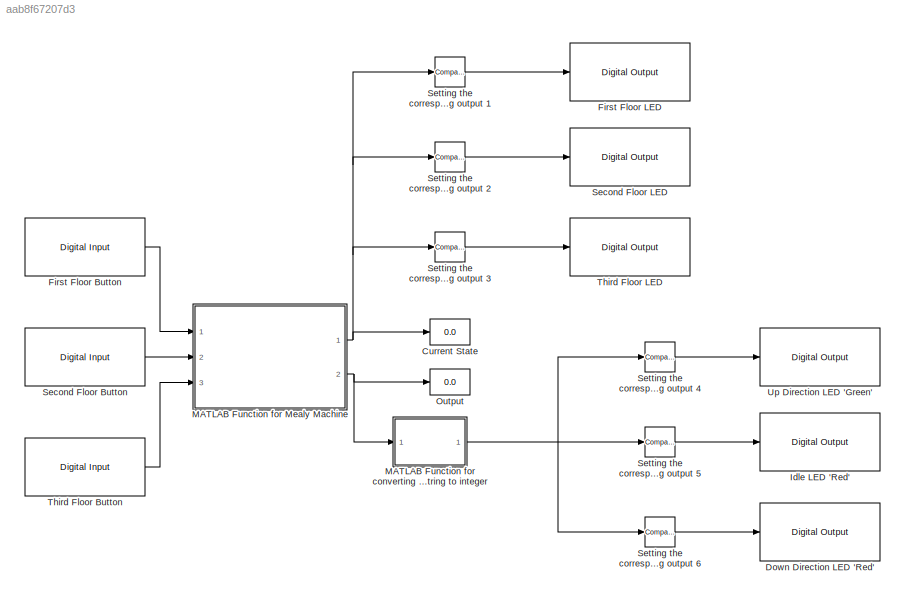
MODEL slx_aab8f67207d3
KIND model
CONFIG AbsTol = auto
CONFIG EnableMultiTasking = on
CONFIG FixedStep = 5000
CONFIG MaxStep = auto
CONFIG MinStep = auto
CONFIG RelTol = 1e-3
CONFIG SampleTimeConstraint = Unconstrained
CONFIG Solver = VariableStepAuto
CONFIG SolverName = VariableStepAuto
CONFIG StartTime = 0.0
CONFIG StopTime = inf
BLOCK [Display] Current State
  Decimation = 1
  Ports = [1]
BLOCK [Reference] Down Direction LED 'Red'  REF=arduinolib/Digital Output
  Ports = [1]
  SourceBlock = arduinolib/Digital Output
  SourceProductBaseCode = ARDUINO
  SourceType = Arduino Digital Output
BLOCK [Reference] First Floor Button  REF=arduinolib/Digital Input
  Ports = [0, 1]
  SourceBlock = arduinolib/Digital Input
  SourceProductBaseCode = ARDUINO
  SourceType = Arduino Digital Input
BLOCK [Reference] First Floor LED  REF=arduinolib/Digital Output
  Ports = [1]
  SourceBlock = arduinolib/Digital Output
  SourceProductBaseCode = ARDUINO
  SourceType = Arduino Digital Output
BLOCK [Reference] Idle LED 'Red'  REF=arduinolib/Digital Output
  Ports = [1]
  SourceBlock = arduinolib/Digital Output
  SourceProductBaseCode = ARDUINO
  SourceType = Arduino Digital Output
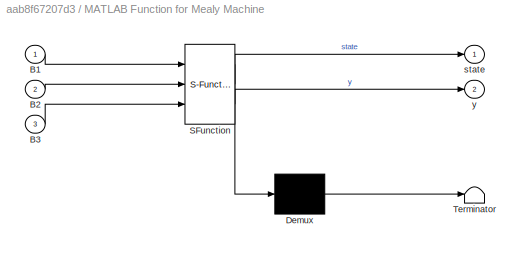
BLOCK [SubSystem] MATLAB Function for Mealy Machine
  ErrorFcn = Stateflow.Translate.translate
  PermitHierarchicalResolution = ExplicitOnly
  Ports = [3, 2]
  RequestExecContextInheritance = off
  SFBlockType = MATLAB Function
  TreatAsAtomicUnit = on
BLOCK [Demux] MATLAB Function for Mealy Machine/ Demux 
  DisplayOption = bar
  Outputs = 1
  Ports = [1, 1]
BLOCK [S-Function] MATLAB Function for Mealy Machine/ SFunction 
  EnableBusSupport = on
  FunctionName = sf_sfun
  PortCounts = [3 3]
  Ports = [3, 3]
  SFcnIsStateOwnerBlock = off
  SFunctionDeploymentMode = off
  Tag = Stateflow S-Function 2
BLOCK [Terminator] MATLAB Function for Mealy Machine/ Terminator 
BLOCK [Inport] MATLAB Function for Mealy Machine/B1
  IconDisplay = Port number
BLOCK [Inport] MATLAB Function for Mealy Machine/B2
  IconDisplay = Port number
  Port = 2
BLOCK [Inport] MATLAB Function for Mealy Machine/B3
  IconDisplay = Port number
  Port = 3
BLOCK [Outport] MATLAB Function for Mealy Machine/state
  IconDisplay = Port number
BLOCK [Outport] MATLAB Function for Mealy Machine/y
  IconDisplay = Port number
  Port = 2
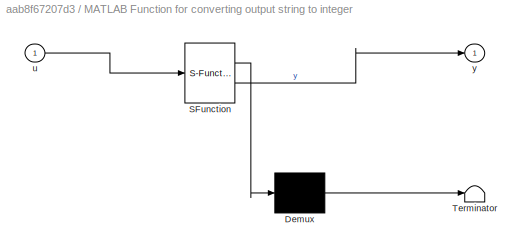
BLOCK [SubSystem] MATLAB Function for converting output string to integer
  ErrorFcn = Stateflow.Translate.translate
  PermitHierarchicalResolution = ExplicitOnly
  Ports = [1, 1]
  RequestExecContextInheritance = off
  SFBlockType = MATLAB Function
  TreatAsAtomicUnit = on
BLOCK [Demux] MATLAB Function for converting output string to integer/ Demux 
  DisplayOption = bar
  Outputs = 1
  Ports = [1, 1]
BLOCK [S-Function] MATLAB Function for converting output string to integer/ SFunction 
  EnableBusSupport = on
  FunctionName = sf_sfun
  PortCounts = [1 2]
  Ports = [1, 2]
  SFcnIsStateOwnerBlock = off
  SFunctionDeploymentMode = off
  Tag = Stateflow S-Function 3
BLOCK [Terminator] MATLAB Function for converting output string to integer/ Terminator 
BLOCK [Inport] MATLAB Function for converting output string to integer/u
  IconDisplay = Port number
BLOCK [Outport] MATLAB Function for converting output string to integer/y
  IconDisplay = Port number
BLOCK [Display] Output
  Decimation = 1
  Ports = [1]
BLOCK [Reference] Second Floor Button  REF=arduinolib/Digital Input
  Ports = [0, 1]
  SourceBlock = arduinolib/Digital Input
  SourceProductBaseCode = ARDUINO
  SourceType = Arduino Digital Input
BLOCK [Reference] Second Floor LED  REF=arduinolib/Digital Output
  Ports = [1]
  SourceBlock = arduinolib/Digital Output
  SourceProductBaseCode = ARDUINO
  SourceType = Arduino Digital Output
BLOCK [Reference] Setting the corresponding output 1  REF=simulink/Logic and Bit
Operations/Compare
To Constant
  Ports = [1, 1]
  SourceBlock = simulink/Logic and Bit\nOperations/Compare\nTo Constant
  SourceProductBaseCode = SL
  SourceType = Compare To Constant
BLOCK [Reference] Setting the corresponding output 2  REF=simulink/Logic and Bit
Operations/Compare
To Constant
  Ports = [1, 1]
  SourceBlock = simulink/Logic and Bit\nOperations/Compare\nTo Constant
  SourceProductBaseCode = SL
  SourceType = Compare To Constant
BLOCK [Reference] Setting the corresponding output 3  REF=simulink/Logic and Bit
Operations/Compare
To Constant
  Ports = [1, 1]
  SourceBlock = simulink/Logic and Bit\nOperations/Compare\nTo Constant
  SourceProductBaseCode = SL
  SourceType = Compare To Constant
BLOCK [Reference] Setting the corresponding output 4  REF=simulink/Logic and Bit
Operations/Compare
To Constant
  Ports = [1, 1]
  SourceBlock = simulink/Logic and Bit\nOperations/Compare\nTo Constant
  SourceProductBaseCode = SL
  SourceType = Compare To Constant
BLOCK [Reference] Setting the corresponding output 5  REF=simulink/Logic and Bit
Operations/Compare
To Constant
  Ports = [1, 1]
  SourceBlock = simulink/Logic and Bit\nOperations/Compare\nTo Constant
  SourceProductBaseCode = SL
  SourceType = Compare To Constant
BLOCK [Reference] Setting the corresponding output 6  REF=simulink/Logic and Bit
Operations/Compare
To Constant
  Ports = [1, 1]
  SourceBlock = simulink/Logic and Bit\nOperations/Compare\nTo Constant
  SourceProductBaseCode = SL
  SourceType = Compare To Constant
BLOCK [Reference] Third Floor Button  REF=arduinolib/Digital Input
  Ports = [0, 1]
  SourceBlock = arduinolib/Digital Input
  SourceProductBaseCode = ARDUINO
  SourceType = Arduino Digital Input
BLOCK [Reference] Third Floor LED  REF=arduinolib/Digital Output
  Ports = [1]
  SourceBlock = arduinolib/Digital Output
  SourceProductBaseCode = ARDUINO
  SourceType = Arduino Digital Output
BLOCK [Reference] Up Direction LED 'Green'  REF=arduinolib/Digital Output
  Ports = [1]
  SourceBlock = arduinolib/Digital Output
  SourceProductBaseCode = ARDUINO
  SourceType = Arduino Digital Output
LINE First Floor Button:1 -> MATLAB Function for Mealy Machine:1
NET MATLAB Function for Mealy Machine:1 -> Current State:1, Setting the corresponding output 1:1, Setting the corresponding output 2:1, Setting the corresponding output 3:1
NET MATLAB Function for Mealy Machine:2 -> MATLAB Function for converting output string to integer:1, Output:1
NET MATLAB Function for converting output string to integer:1 -> Setting the corresponding output 4:1, Setting the corresponding output 5:1, Setting the corresponding output 6:1
LINE Second Floor Button:1 -> MATLAB Function for Mealy Machine:2
LINE Setting the corresponding output 1:1 -> First Floor LED:1
LINE Setting the corresponding output 2:1 -> Second Floor LED:1
LINE Setting the corresponding output 3:1 -> Third Floor LED:1
LINE Setting the corresponding output 4:1 -> Up Direction LED 'Green':1
LINE Setting the corresponding output 5:1 -> Idle LED 'Red':1
LINE Setting the corresponding output 6:1 -> Down Direction LED 'Red':1
LINE Third Floor Button:1 -> MATLAB Function for Mealy Machine:3
note: NET lines group one-source signal fan-out (src -> all destinations, sorted); 1:1 wires keep LINE
CHART MATLAB Function for Mealy Machine states=1 transitions=1
  STATE_LABEL 'eML_blk_kernel()'
  STATE_LABEL 'SCRIPT:\nfunction [state,y] = fcn(B1,B2,B3)\npersistent current_state\nif(isempty(current_state))\n    current_state = 1;\nend\nswitch current_state\n    case 1\n        if(B2)\n            current_state = 2;\n            y = "u1";\n        elseif(B3)\n            current_state = 3;\n            y = "u2";\n        else\n            current_state = 1;\n            y = "s";\n        end\n    case 2\n        if(B1)\n   ...<+549ch>'
CHART MATLAB Function for converting output string to integer states=1 transitions=1
  STATE_LABEL 'eML_blk_kernel()'
  STATE_LABEL 'SCRIPT:\nfunction y = fcn(u)\nif u == "s"\n    y = 0;\nelseif u == "u1"\n    y = 1;\nelseif u == "u2"\n    y = 2;\nelseif u == "d1"\n    y = -1;\nelse\n    y = -2;\nend\n'
